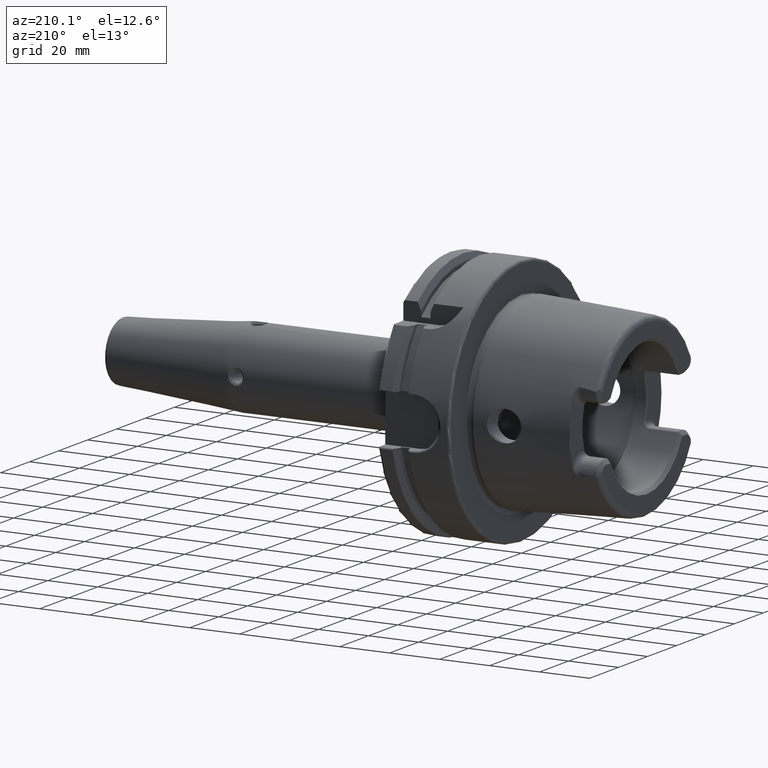
[diagram: clean part render]
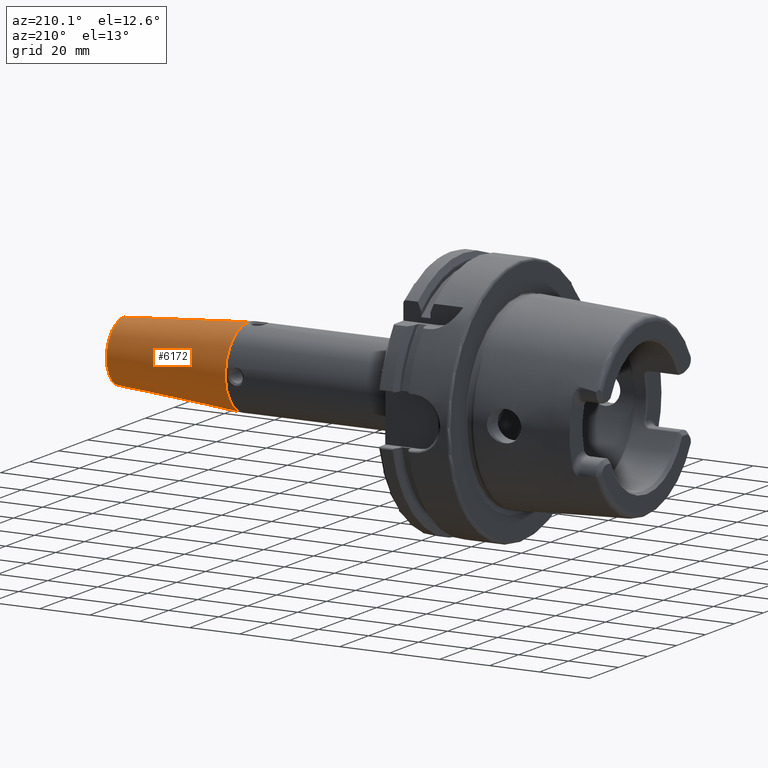
[diagram: same view with one face highlighted and labeled with its STEP entity id]
A machine part, auxiliary view. The second image highlights one B-rep face of the part: STEP entity #6172.
In plain terms, the highlighted conical surface has half-angle 4.5 deg.
Its self-contained STEP definition (entity closure, byte-faithful):
#2400=DIRECTION('',(9.969173337331E-1,0.E0,-7.845909572785E-2));
#2401=VECTOR('',#2400,5.005758888104E1);
#2402=CARTESIAN_POINT('',(1.091751810553E2,0.E0,1.6E1));
#2403=LINE('',#2402,#2401);
#2404=DIRECTION('',(9.969173337331E-1,-5.500725860564E-11,7.845909572785E-2));
#2405=VECTOR('',#2404,5.005758888104E1);
#2406=CARTESIAN_POINT('',(1.091751810553E2,2.753530736754E-9,-1.6E1));
#2407=LINE('',#2406,#2405);
#2408=CARTESIAN_POINT('',(1.091751810553E2,0.E0,0.E0));
#2409=DIRECTION('',(-1.E0,0.E0,0.E0));
#2410=DIRECTION('',(0.E0,0.E0,1.E0));
#2411=AXIS2_PLACEMENT_3D('',#2408,#2409,#2410);
#2418=CARTESIAN_POINT('',(1.590784590957E2,0.E0,0.E0));
#2419=DIRECTION('',(-1.E0,0.E0,0.E0));
#2420=DIRECTION('',(0.E0,0.E0,1.E0));
#2421=AXIS2_PLACEMENT_3D('',#2418,#2419,#2420);
#3433=CARTESIAN_POINT('',(1.091751810553E2,2.753530736754E-9,-1.6E1));
#3434=VERTEX_POINT('',#3433);
#3435=CARTESIAN_POINT('',(1.091751810553E2,0.E0,1.6E1));
#3436=VERTEX_POINT('',#3435);
#3462=CARTESIAN_POINT('',(1.590784590957E2,0.E0,-1.207252684208E1));
#3463=VERTEX_POINT('',#3462);
#3464=CARTESIAN_POINT('',(1.590784590957E2,0.E0,1.207252684208E1));
#3465=VERTEX_POINT('',#3464);
#6160=CARTESIAN_POINT('',(1.341268200755E2,0.E0,0.E0));
#6161=DIRECTION('',(-1.E0,0.E0,0.E0));
#6162=DIRECTION('',(0.E0,0.E0,-1.E0));
#6163=AXIS2_PLACEMENT_3D('',#6160,#6161,#6162);
#6164=CONICAL_SURFACE('',#6163,1.403626342104E1,4.499999999999E0);
#6165=ORIENTED_EDGE('',*,*,#6150,.T.);
#6167=ORIENTED_EDGE('',*,*,#6166,.F.);
#6168=ORIENTED_EDGE('',*,*,#6153,.F.);
#6169=ORIENTED_EDGE('',*,*,#5963,.T.);
#6170=EDGE_LOOP('',(#6165,#6167,#6168,#6169));
#6171=FACE_OUTER_BOUND('',#6170,.F.);
#6172=ADVANCED_FACE('',(#6171),#6164,.T.);
#2412=CIRCLE('',#2411,1.6E1);
#2422=CIRCLE('',#2421,1.207252684208E1);
#5963=EDGE_CURVE('',#3436,#3434,#2412,.T.);
#6150=EDGE_CURVE('',#3434,#3463,#2407,.T.);
#6153=EDGE_CURVE('',#3436,#3465,#2403,.T.);
#6166=EDGE_CURVE('',#3465,#3463,#2422,.T.);